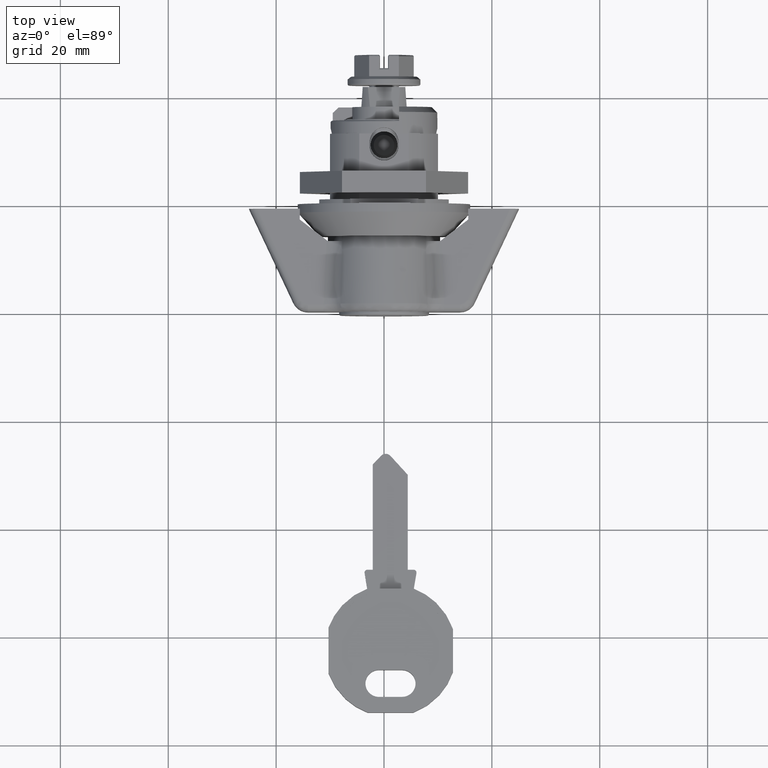
[diagram: clean part render]
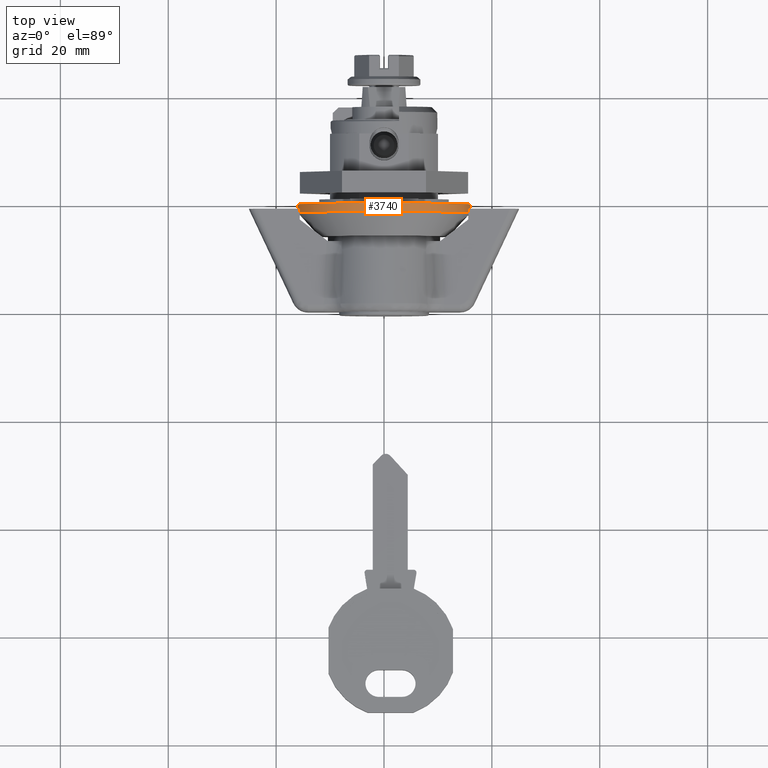
[diagram: same view with one face highlighted and labeled with its STEP entity id]
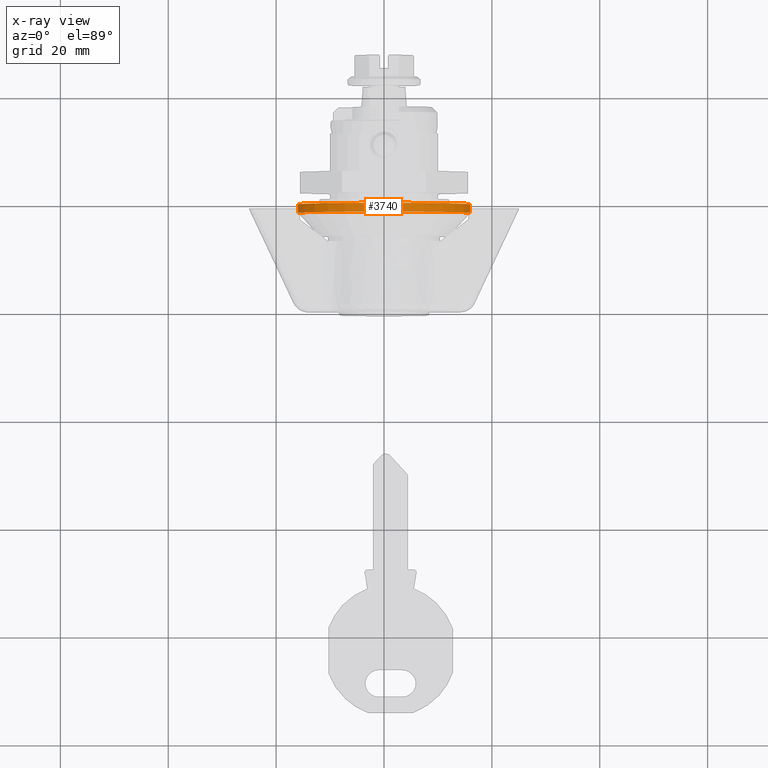
[diagram: x-ray of the same camera — body ghosted, the highlighted face saturated]
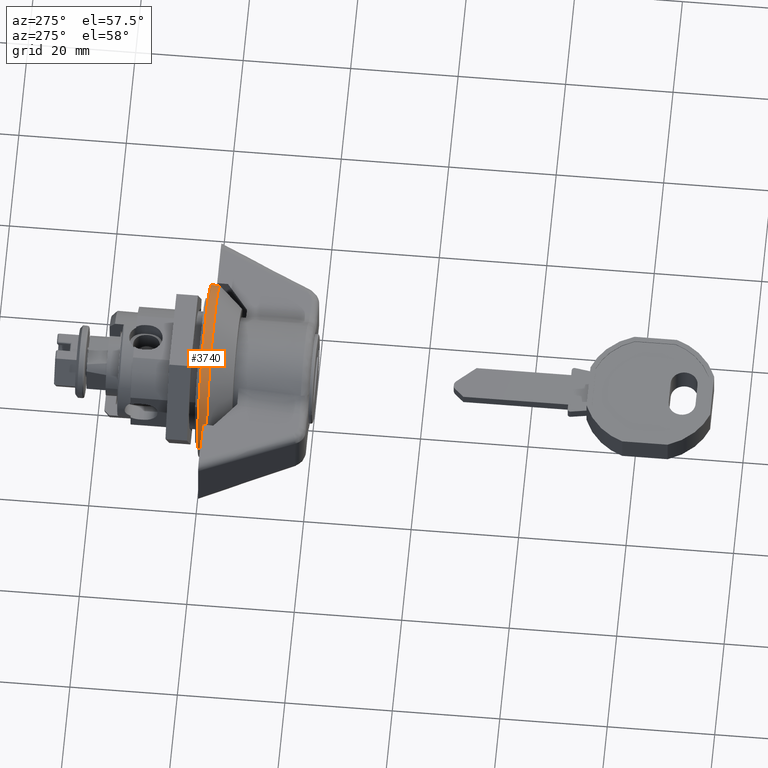
[diagram: same view with one face highlighted and labeled with its STEP entity id]
A machine part, top view. The second image highlights one B-rep face of the part: STEP entity #3740.
The next image is the same camera in x-ray: the body ghosted, the highlighted face saturated — about 0% of this face is hidden behind the body in this view.
A second angle (auxiliary view) of the same face is appended — the face is thin or edge-on in the first view.
In plain terms, the highlighted face is a freeform B-spline surface patch.
Its self-contained STEP definition (entity closure, byte-faithful):
#3543=CARTESIAN_POINT('',(-1.600000075995895,15.895507849959561,-1.825610722625219));
#3544=VERTEX_POINT('',#3543);
#3560=CARTESIAN_POINT('',(-3.698215E-017,15.895511029528400,-1.825583037842371));
#3561=VERTEX_POINT('',#3560);
#3562=CARTESIAN_POINT('',(-3.698215E-017,15.895511029528400,-1.825583037842371));
#3563=CARTESIAN_POINT('',(-1.600000075995895,15.895507849959561,-1.825610722625219));
#3564=QUASI_UNIFORM_CURVE('',1,(#3562,#3563),.UNSPECIFIED.,.F.,.U.);
#3565=EDGE_CURVE('',#3561,#3544,#3564,.T.);
#3582=CARTESIAN_POINT('',(-3.816392E-017,-15.970158733624951,-0.976757053278499));
#3583=VERTEX_POINT('',#3582);
#3597=CARTESIAN_POINT('',(-1.600000075995535,-15.970157629298230,-0.976775109252513));
#3598=VERTEX_POINT('',#3597);
#3599=CARTESIAN_POINT('',(-3.816392E-017,-15.970158733624951,-0.976757053278499));
#3600=CARTESIAN_POINT('',(-1.600000075995535,-15.970157629298230,-0.976775109252513));
#3601=QUASI_UNIFORM_CURVE('',1,(#3599,#3600),.UNSPECIFIED.,.F.,.U.);
#3602=EDGE_CURVE('',#3583,#3598,#3601,.T.);
#3635=CARTESIAN_POINT('',(0.040000001899897,-15.970157533291490,-0.976776678952105));
#3636=CARTESIAN_POINT('',(0.040000001899897,-16.946934212243598,14.993380854339385));
#3637=CARTESIAN_POINT('',(0.040000001899897,-0.976776678952105,15.970157533291490));
#3638=CARTESIAN_POINT('',(0.040000001899897,14.993380854339385,16.946934212243598));
#3639=CARTESIAN_POINT('',(0.040000001899897,15.970157533291490,0.976776678952105));
#3640=CARTESIAN_POINT('',(0.040000001899897,16.056058976938168,-0.427699509859380));
#3641=CARTESIAN_POINT('',(0.040000001899897,15.895507849967368,-1.825610722557605));
#3642=CARTESIAN_POINT('',(-1.641000077943290,-15.970157533291490,-0.976776678952105));
#3643=CARTESIAN_POINT('',(-1.641000077943291,-16.946934212243598,14.993380854339385));
#3644=CARTESIAN_POINT('',(-1.641000077943290,-0.976776678952105,15.970157533291490));
#3645=CARTESIAN_POINT('',(-1.641000077943291,14.993380854339385,16.946934212243598));
#3646=CARTESIAN_POINT('',(-1.641000077943290,15.970157533291490,0.976776678952105));
#3647=CARTESIAN_POINT('',(-1.641000077943291,16.056058976938168,-0.427699509859380));
#3648=CARTESIAN_POINT('',(-1.641000077943290,15.895507849967368,-1.825610722557605));
#3656=(BOUNDED_SURFACE()B_SPLINE_SURFACE(2,1,((#3635,#3642),(#3636,#3643),(#3637,#3644),(#3638,#3645),(#3639,#3646),(#3640,#3647),(#3641,#3648)),.UNSPECIFIED.,.F.,.F.,.U.)B_SPLINE_SURFACE_WITH_KNOTS((3,2,2,3),(2,2),(0.0,26.509669251019542,53.019338502039083,56.200498812161420),(0.0,1.0),.UNSPECIFIED.)GEOMETRIC_REPRESENTATION_ITEM()RATIONAL_B_SPLINE_SURFACE(((1.0,1.0),(0.707106781186548,0.707106781186548),(1.0,1.0),(0.707106781186548,0.707106781186548),(1.0,1.0),(0.964852813742386,0.964852813742386),(0.938140952186599,0.938140952186599)))REPRESENTATION_ITEM('')SURFACE());
#3657=CARTESIAN_POINT('',(-1.600000075976500,15.950678097353070,1.255345591410591));
#3658=VERTEX_POINT('',#3657);
#3659=CARTESIAN_POINT('',(-1.600000075976500,15.950678097353062,1.255345591410591));
#3660=CARTESIAN_POINT('',(-1.600000075995895,16.000000759959004,0.628641742120212));
#3661=CARTESIAN_POINT('',(-1.600000075995895,16.000000759959001,0.0));
#3662=CARTESIAN_POINT('',(-1.600000075995895,16.000000759958997,-0.915795803970914));
#3663=CARTESIAN_POINT('',(-1.600000075995895,15.895507849959557,-1.825610722625219));
#3671=(BOUNDED_CURVE()B_SPLINE_CURVE(2,(#3659,#3660,#3661,#3662,#3663),.UNSPECIFIED.,.F.,.U.)B_SPLINE_CURVE_WITH_KNOTS((3,2,3),(0.236331300629801,0.250000000000000,0.269767755878049),.UNSPECIFIED.)CURVE()GEOMETRIC_REPRESENTATION_ITEM()RATIONAL_B_SPLINE_CURVE((0.969723356165626,0.983986122577876,1.0,0.976840633408639,0.957343736457824))REPRESENTATION_ITEM(''));
#3672=EDGE_CURVE('',#3658,#3544,#3671,.T.);
#3673=ORIENTED_EDGE('',*,*,#3672,.F.);
#3674=CARTESIAN_POINT('',(-1.600000075995895,0.0,16.000000759959001));
#3675=VERTEX_POINT('',#3674);
#3676=CARTESIAN_POINT('',(-1.600000075995895,0.0,16.000000759959001));
#3677=CARTESIAN_POINT('',(-1.600000075995895,14.790248568773491,16.000000759959004));
#3678=CARTESIAN_POINT('',(-1.600000075976499,15.950678097353066,1.255345591410592));
#3686=(BOUNDED_CURVE()B_SPLINE_CURVE(2,(#3676,#3677,#3678),.UNSPECIFIED.,.F.,.U.)B_SPLINE_CURVE_WITH_KNOTS((3,3),(0.0,0.236331300629801),.UNSPECIFIED.)CURVE()GEOMETRIC_REPRESENTATION_ITEM()RATIONAL_B_SPLINE_CURVE((1.0,0.723120658608672,0.969723356165626))REPRESENTATION_ITEM(''));
#3687=EDGE_CURVE('',#3675,#3658,#3686,.T.);
#3688=ORIENTED_EDGE('',*,*,#3687,.F.);
#3689=CARTESIAN_POINT('',(-1.600000075995535,-15.970157629298230,-0.976775109252513));
#3690=CARTESIAN_POINT('',(-1.600000075995895,-16.000000759959001,-0.488843448945839));
#3691=CARTESIAN_POINT('',(-1.600000075995895,-16.000000759959001,0.0));
#3692=CARTESIAN_POINT('',(-1.600000075995895,-16.000000759958997,16.000000759958997));
#3693=CARTESIAN_POINT('',(-1.600000075995895,0.0,16.000000759959001));
#3701=(BOUNDED_CURVE()B_SPLINE_CURVE(2,(#3689,#3690,#3691,#3692,#3693),.UNSPECIFIED.,.F.,.U.)B_SPLINE_CURVE_WITH_KNOTS((3,2,3),(0.739332979201515,0.750000000000000,1.0),.UNSPECIFIED.)CURVE()GEOMETRIC_REPRESENTATION_ITEM()RATIONAL_B_SPLINE_CURVE((0.976072078020741,0.987502807772726,1.0,0.707106781186547,1.0))REPRESENTATION_ITEM(''));
#3702=EDGE_CURVE('',#3598,#3675,#3701,.T.);
#3703=ORIENTED_EDGE('',*,*,#3702,.F.);
#3704=ORIENTED_EDGE('',*,*,#3602,.F.);
#3705=CARTESIAN_POINT('',(0.0,0.0,16.000000759959200));
#3706=VERTEX_POINT('',#3705);
#3707=CARTESIAN_POINT('',(-3.816392E-017,-15.970158733624951,-0.976757053278499));
#3708=CARTESIAN_POINT('',(0.0,-16.000000759959200,-0.488834395646157));
#3709=CARTESIAN_POINT('',(0.0,-16.000000759959200,0.0));
#3710=CARTESIAN_POINT('',(0.0,-16.000000759959196,16.000000759959196));
#3711=CARTESIAN_POINT('',(0.0,0.0,16.000000759959200));
#3719=(BOUNDED_CURVE()B_SPLINE_CURVE(2,(#3707,#3708,#3709,#3710,#3711),.UNSPECIFIED.,.F.,.U.)B_SPLINE_CURVE_WITH_KNOTS((3,2,3),(0.739333174284179,0.750000000000000,1.0),.UNSPECIFIED.)CURVE()GEOMETRIC_REPRESENTATION_ITEM()RATIONAL_B_SPLINE_CURVE((0.976072496120445,0.987503036326285,1.0,0.707106781186547,1.0))REPRESENTATION_ITEM(''));
#3720=EDGE_CURVE('',#3583,#3706,#3719,.T.);
#3721=ORIENTED_EDGE('',*,*,#3720,.T.);
#3722=CARTESIAN_POINT('',(0.0,0.0,16.000000759959200));
#3723=CARTESIAN_POINT('',(0.0,16.000000759959196,16.000000759959196));
#3724=CARTESIAN_POINT('',(0.0,16.000000759959200,0.0));
#3725=CARTESIAN_POINT('',(0.0,16.000000759959200,-0.915781824905405));
#3726=CARTESIAN_POINT('',(-3.698215E-017,15.895511029528400,-1.825583037842371));
#3734=(BOUNDED_CURVE()B_SPLINE_CURVE(2,(#3722,#3723,#3724,#3725,#3726),.UNSPECIFIED.,.F.,.U.)B_SPLINE_CURVE_WITH_KNOTS((3,2,3),(0.0,0.250000000000000,0.269767461123355),.UNSPECIFIED.)CURVE()GEOMETRIC_REPRESENTATION_ITEM()RATIONAL_B_SPLINE_CURVE((1.0,0.707106781186547,1.0,0.976840978735243,0.957344317890535))REPRESENTATION_ITEM(''));
#3735=EDGE_CURVE('',#3706,#3561,#3734,.T.);
#3736=ORIENTED_EDGE('',*,*,#3735,.T.);
#3737=ORIENTED_EDGE('',*,*,#3565,.T.);
#3738=EDGE_LOOP('',(#3673,#3688,#3703,#3704,#3721,#3736,#3737));
#3739=FACE_OUTER_BOUND('',#3738,.T.);
#3740=ADVANCED_FACE('',(#3739),#3656,.T.);